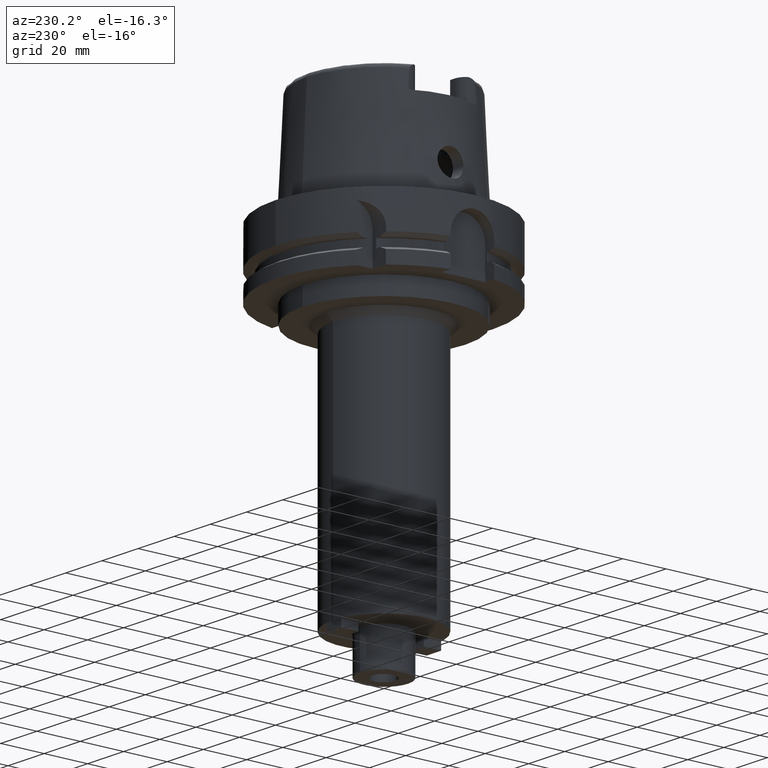
[diagram: clean part render]
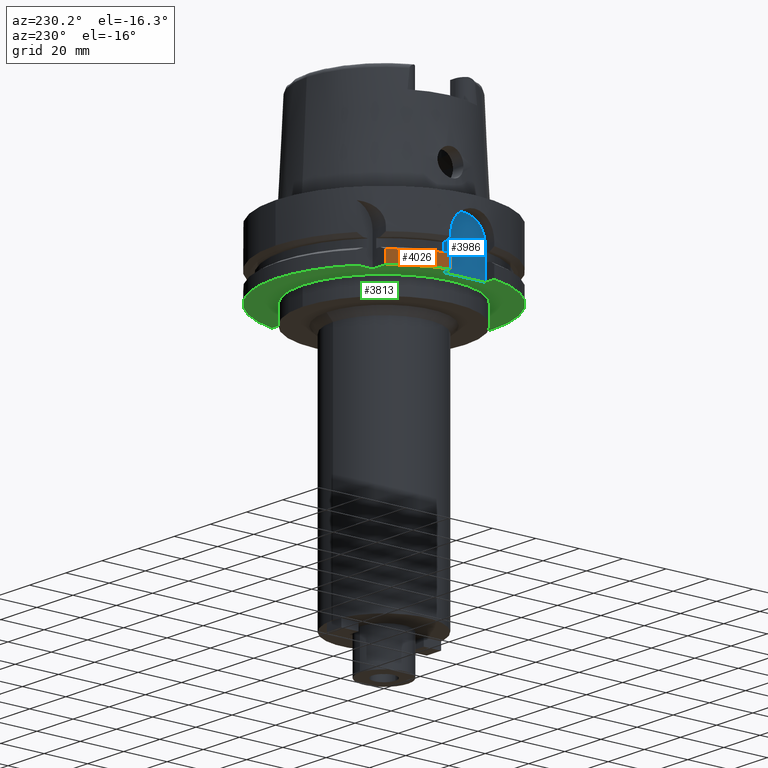
[diagram: same view with three faces highlighted in distinct colors, each labeled with its STEP entity id]
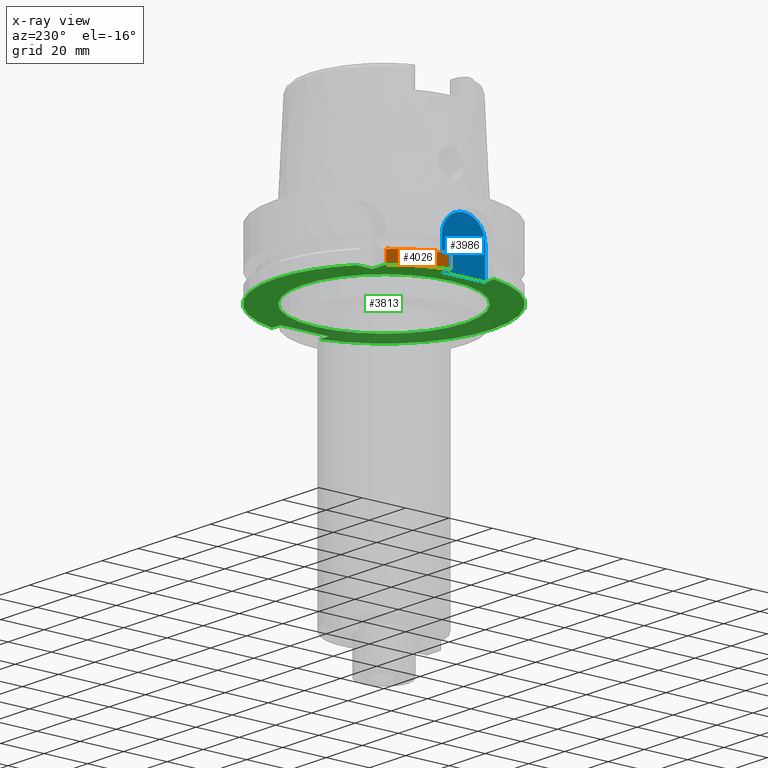
[diagram: x-ray of the same camera — body ghosted, the three highlighted faces saturated]
A machine part, auxiliary view with three faces highlighted in distinct colors.
The next image is the same camera in x-ray (body ghosted, the three faces saturated) — at least one of them is partly hidden behind the body in this view.
Their STEP definitions:

[orange] entity #4026 — the highlighted cylindrical surface (partial cylindrical patch) has radius 50 mm, axis along (0, 0, 1).
#1292=CARTESIAN_POINT('',(0.E0,0.E0,-2.9E1));
#1293=DIRECTION('',(0.E0,0.E0,1.E0));
#1294=DIRECTION('',(-7.765951326142E-1,6.3E-1,0.E0));
#1295=AXIS2_PLACEMENT_3D('',#1292,#1293,#1294);
#1545=DIRECTION('',(-1.164835654148E-7,-1.435883620959E-7,1.E0));
#1546=VECTOR('',#1545,5.752407739009E0);
#1547=CARTESIAN_POINT('',(-3.882975663071E1,3.15E1,-2.9E1));
#1548=LINE('',#1547,#1546);
#1552=DIRECTION('',(-8.399427413532E-14,0.E0,-1.E0));
#1553=VECTOR('',#1552,5.752404735809E0);
#1554=CARTESIAN_POINT('',(-4.898979485566E1,1.E1,-2.324759526419E1));
#1555=LINE('',#1554,#1553);
#2212=CARTESIAN_POINT('',(0.E0,0.E0,-2.324759526419E1));
#2213=DIRECTION('',(0.E0,0.E0,-1.E0));
#2214=DIRECTION('',(-9.797958971133E-1,2.E-1,0.E0));
#2215=AXIS2_PLACEMENT_3D('',#2212,#2213,#2214);
#2657=CARTESIAN_POINT('',(-3.882975663071E1,3.15E1,-2.9E1));
#2658=VERTEX_POINT('',#2657);
#2659=CARTESIAN_POINT('',(-4.898979485566E1,1.E1,-2.9E1));
#2660=VERTEX_POINT('',#2659);
#2703=CARTESIAN_POINT('',(-3.882975730077E1,3.149999917402E1,
-2.324759226099E1));
#2704=VERTEX_POINT('',#2703);
#2705=CARTESIAN_POINT('',(-4.898979485566E1,1.E1,-2.324759526419E1));
#2706=VERTEX_POINT('',#2705);
#4013=CARTESIAN_POINT('',(0.E0,0.E0,-1.7785E2));
#4014=DIRECTION('',(0.E0,0.E0,1.E0));
#4015=DIRECTION('',(0.E0,1.E0,0.E0));
#4016=AXIS2_PLACEMENT_3D('',#4013,#4014,#4015);
#4017=CYLINDRICAL_SURFACE('',#4016,5.E1);
#4019=ORIENTED_EDGE('',*,*,#4018,.T.);
#4021=ORIENTED_EDGE('',*,*,#4020,.F.);
#4022=ORIENTED_EDGE('',*,*,#3993,.T.);
#4023=ORIENTED_EDGE('',*,*,#3785,.F.);
#4024=EDGE_LOOP('',(#4019,#4021,#4022,#4023));
#4025=FACE_OUTER_BOUND('',#4024,.F.);
#1296=CIRCLE('',#1295,5.E1);
#2216=CIRCLE('',#2215,5.E1);
#3785=EDGE_CURVE('',#2658,#2660,#1296,.T.);
#3993=EDGE_CURVE('',#2706,#2660,#1555,.T.);
#4018=EDGE_CURVE('',#2658,#2704,#1548,.T.);
#4020=EDGE_CURVE('',#2706,#2704,#2216,.T.);
#4026=ADVANCED_FACE('',(#4025),#4017,.T.);

[blue] entity #3986 — the highlighted planar face has unit normal (1, 0, 0).
#1487=DIRECTION('',(0.E0,0.E0,1.E0));
#1488=VECTOR('',#1487,1.4E1);
#1489=CARTESIAN_POINT('',(-4.4E1,-1.E1,-2.9E1));
#1490=LINE('',#1489,#1488);
#1501=DIRECTION('',(0.E0,1.E0,0.E0));
#1502=VECTOR('',#1501,2.E1);
#1503=CARTESIAN_POINT('',(-4.4E1,-1.E1,-2.9E1));
#1504=LINE('',#1503,#1502);
#1508=CARTESIAN_POINT('',(-4.4E1,0.E0,-1.5E1));
#1509=DIRECTION('',(1.E0,0.E0,0.E0));
#1510=DIRECTION('',(0.E0,1.E0,0.E0));
#1511=AXIS2_PLACEMENT_3D('',#1508,#1509,#1510);
#1516=CARTESIAN_POINT('',(-4.4E1,0.E0,-1.5E1));
#1517=DIRECTION('',(1.E0,0.E0,0.E0));
#1518=DIRECTION('',(0.E0,0.E0,1.E0));
#1519=AXIS2_PLACEMENT_3D('',#1516,#1517,#1518);
#1538=DIRECTION('',(0.E0,0.E0,-1.E0));
#1539=VECTOR('',#1538,1.4E1);
#1540=CARTESIAN_POINT('',(-4.4E1,1.E1,-1.5E1));
#1541=LINE('',#1540,#1539);
#2661=CARTESIAN_POINT('',(-4.4E1,1.E1,-2.9E1));
#2662=VERTEX_POINT('',#2661);
#2663=CARTESIAN_POINT('',(-4.4E1,-1.E1,-2.9E1));
#2664=VERTEX_POINT('',#2663);
#2707=CARTESIAN_POINT('',(-4.4E1,-1.E1,-1.5E1));
#2708=VERTEX_POINT('',#2707);
#2720=CARTESIAN_POINT('',(-4.4E1,1.E1,-1.5E1));
#2721=VERTEX_POINT('',#2720);
#2722=CARTESIAN_POINT('',(-4.4E1,0.E0,-5.E0));
#2723=VERTEX_POINT('',#2722);
#3971=CARTESIAN_POINT('',(-4.4E1,0.E0,0.E0));
#3972=DIRECTION('',(1.E0,0.E0,0.E0));
#3973=DIRECTION('',(0.E0,0.E0,1.E0));
#3974=AXIS2_PLACEMENT_3D('',#3971,#3972,#3973);
#3975=PLANE('',#3974);
#3976=ORIENTED_EDGE('',*,*,#3789,.T.);
#3978=ORIENTED_EDGE('',*,*,#3977,.F.);
#3980=ORIENTED_EDGE('',*,*,#3979,.T.);
#3982=ORIENTED_EDGE('',*,*,#3981,.T.);
#3983=ORIENTED_EDGE('',*,*,#3951,.F.);
#3984=EDGE_LOOP('',(#3976,#3978,#3980,#3982,#3983));
#3985=FACE_OUTER_BOUND('',#3984,.F.);
#1512=CIRCLE('',#1511,1.E1);
#1520=CIRCLE('',#1519,1.E1);
#3789=EDGE_CURVE('',#2664,#2662,#1504,.T.);
#3951=EDGE_CURVE('',#2664,#2708,#1490,.T.);
#3977=EDGE_CURVE('',#2721,#2662,#1541,.T.);
#3979=EDGE_CURVE('',#2721,#2723,#1512,.T.);
#3981=EDGE_CURVE('',#2723,#2708,#1520,.T.);
#3986=ADVANCED_FACE('',(#3985),#3975,.F.);

[green] entity #3813 — the highlighted planar face has unit normal (0, 0, 1).
#1285=DIRECTION('',(-1.E0,-4.798503851106E-14,0.E0));
#1286=VECTOR('',#1285,7.329756630709E0);
#1287=CARTESIAN_POINT('',(-3.15E1,3.15E1,-2.9E1));
#1288=LINE('',#1287,#1286);
#1292=CARTESIAN_POINT('',(0.E0,0.E0,-2.9E1));
#1293=DIRECTION('',(0.E0,0.E0,1.E0));
#1294=DIRECTION('',(-7.765951326142E-1,6.3E-1,0.E0));
#1295=AXIS2_PLACEMENT_3D('',#1292,#1293,#1294);
#1300=DIRECTION('',(-1.E0,-4.627973610177E-14,0.E0));
#1301=VECTOR('',#1300,4.989794855662E0);
#1302=CARTESIAN_POINT('',(-4.4E1,-1.E1,-2.9E1));
#1303=LINE('',#1302,#1301);
#1307=CARTESIAN_POINT('',(0.E0,0.E0,-2.9E1));
#1308=DIRECTION('',(0.E0,0.E0,1.E0));
#1309=DIRECTION('',(-9.797958971133E-1,-2.E-1,0.E0));
#1310=AXIS2_PLACEMENT_3D('',#1307,#1308,#1309);
#1315=CARTESIAN_POINT('',(0.E0,0.E0,-2.9E1));
#1316=DIRECTION('',(0.E0,0.E0,1.E0));
#1317=DIRECTION('',(0.E0,-1.E0,0.E0));
#1318=AXIS2_PLACEMENT_3D('',#1315,#1316,#1317);
#1323=DIRECTION('',(1.E0,-1.785659532940E-14,0.E0));
#1324=VECTOR('',#1323,4.774993593029E0);
#1325=CARTESIAN_POINT('',(4.4E1,1.1E1,-2.9E1));
#1326=LINE('',#1325,#1324);
#1330=CARTESIAN_POINT('',(0.E0,0.E0,-2.9E1));
#1331=DIRECTION('',(0.E0,0.E0,1.E0));
#1332=DIRECTION('',(9.754998718606E-1,2.2E-1,0.E0));
#1333=AXIS2_PLACEMENT_3D('',#1330,#1331,#1332);
#1338=CARTESIAN_POINT('',(0.E0,0.E0,-2.9E1));
#1339=DIRECTION('',(0.E0,0.E0,1.E0));
#1340=DIRECTION('',(0.E0,1.E0,0.E0));
#1341=AXIS2_PLACEMENT_3D('',#1338,#1339,#1340);
#1346=CARTESIAN_POINT('',(0.E0,0.E0,-2.9E1));
#1347=DIRECTION('',(0.E0,0.E0,-1.E0));
#1348=DIRECTION('',(0.E0,-1.E0,0.E0));
#1349=AXIS2_PLACEMENT_3D('',#1346,#1347,#1348);
#1354=CARTESIAN_POINT('',(0.E0,0.E0,-2.9E1));
#1355=DIRECTION('',(0.E0,0.E0,-1.E0));
#1356=DIRECTION('',(0.E0,1.E0,0.E0));
#1357=AXIS2_PLACEMENT_3D('',#1354,#1355,#1356);
#1362=DIRECTION('',(4.798503851106E-14,1.E0,0.E0));
#1363=VECTOR('',#1362,7.329756630709E0);
#1364=CARTESIAN_POINT('',(-3.15E1,3.15E1,-2.9E1));
#1365=LINE('',#1364,#1363);
#1415=DIRECTION('',(0.E0,-1.E0,0.E0));
#1416=VECTOR('',#1415,2.2E1);
#1417=CARTESIAN_POINT('',(4.4E1,1.1E1,-2.9E1));
#1418=LINE('',#1417,#1416);
#1459=DIRECTION('',(1.E0,1.711257052401E-14,0.E0));
#1460=VECTOR('',#1459,4.774993593029E0);
#1461=CARTESIAN_POINT('',(4.4E1,-1.1E1,-2.9E1));
#1462=LINE('',#1461,#1460);
#1501=DIRECTION('',(0.E0,1.E0,0.E0));
#1502=VECTOR('',#1501,2.E1);
#1503=CARTESIAN_POINT('',(-4.4E1,-1.E1,-2.9E1));
#1504=LINE('',#1503,#1502);
#1524=DIRECTION('',(-1.E0,4.627973610177E-14,0.E0));
#1525=VECTOR('',#1524,4.989794855662E0);
#1526=CARTESIAN_POINT('',(-4.4E1,1.E1,-2.9E1));
#1527=LINE('',#1526,#1525);
#2649=CARTESIAN_POINT('',(0.E0,3.75E1,-2.9E1));
#2650=VERTEX_POINT('',#2649);
#2651=CARTESIAN_POINT('',(0.E0,-3.75E1,-2.9E1));
#2652=VERTEX_POINT('',#2651);
#2653=CARTESIAN_POINT('',(-3.15E1,3.15E1,-2.9E1));
#2654=CARTESIAN_POINT('',(-3.15E1,3.882975663071E1,-2.9E1));
#2655=VERTEX_POINT('',#2653);
#2656=VERTEX_POINT('',#2654);
#2657=CARTESIAN_POINT('',(-3.882975663071E1,3.15E1,-2.9E1));
#2658=VERTEX_POINT('',#2657);
#2659=CARTESIAN_POINT('',(-4.898979485566E1,1.E1,-2.9E1));
#2660=VERTEX_POINT('',#2659);
#2661=CARTESIAN_POINT('',(-4.4E1,1.E1,-2.9E1));
#2662=VERTEX_POINT('',#2661);
#2663=CARTESIAN_POINT('',(-4.4E1,-1.E1,-2.9E1));
#2664=VERTEX_POINT('',#2663);
#2665=CARTESIAN_POINT('',(-4.898979485566E1,-1.E1,-2.9E1));
#2666=VERTEX_POINT('',#2665);
#2667=CARTESIAN_POINT('',(-6.821749291191E-14,-5.E1,-2.9E1));
#2668=CARTESIAN_POINT('',(4.877499359303E1,-1.1E1,-2.9E1));
#2669=VERTEX_POINT('',#2667);
#2670=VERTEX_POINT('',#2668);
#2671=CARTESIAN_POINT('',(4.4E1,-1.1E1,-2.9E1));
#2672=VERTEX_POINT('',#2671);
#2673=CARTESIAN_POINT('',(4.4E1,1.1E1,-2.9E1));
#2674=VERTEX_POINT('',#2673);
#2675=CARTESIAN_POINT('',(4.877499359303E1,1.1E1,-2.9E1));
#2676=VERTEX_POINT('',#2675);
#2677=CARTESIAN_POINT('',(-6.019535474874E-14,5.E1,-2.9E1));
#2678=VERTEX_POINT('',#2677);
#3776=CARTESIAN_POINT('',(0.E0,0.E0,-2.9E1));
#3777=DIRECTION('',(0.E0,0.E0,1.E0));
#3778=DIRECTION('',(0.E0,1.E0,0.E0));
#3779=AXIS2_PLACEMENT_3D('',#3776,#3777,#3778);
#3780=PLANE('',#3779);
#3782=ORIENTED_EDGE('',*,*,#3781,.F.);
#3784=ORIENTED_EDGE('',*,*,#3783,.T.);
#3786=ORIENTED_EDGE('',*,*,#3785,.T.);
#3788=ORIENTED_EDGE('',*,*,#3787,.F.);
#3790=ORIENTED_EDGE('',*,*,#3789,.F.);
#3792=ORIENTED_EDGE('',*,*,#3791,.T.);
#3794=ORIENTED_EDGE('',*,*,#3793,.T.);
#3796=ORIENTED_EDGE('',*,*,#3795,.T.);
#3798=ORIENTED_EDGE('',*,*,#3797,.F.);
#3800=ORIENTED_EDGE('',*,*,#3799,.F.);
#3802=ORIENTED_EDGE('',*,*,#3801,.T.);
#3804=ORIENTED_EDGE('',*,*,#3803,.T.);
#3806=ORIENTED_EDGE('',*,*,#3805,.T.);
#3807=EDGE_LOOP('',(#3782,#3784,#3786,#3788,#3790,#3792,#3794,#3796,#3798,#3800,
#3802,#3804,#3806));
#3808=FACE_OUTER_BOUND('',#3807,.F.);
#3809=ORIENTED_EDGE('',*,*,#3769,.T.);
#3810=ORIENTED_EDGE('',*,*,#3758,.T.);
#3811=EDGE_LOOP('',(#3809,#3810));
#3812=FACE_BOUND('',#3811,.F.);
#1296=CIRCLE('',#1295,5.E1);
#1311=CIRCLE('',#1310,5.E1);
#1319=CIRCLE('',#1318,5.E1);
#1334=CIRCLE('',#1333,5.E1);
#1342=CIRCLE('',#1341,5.E1);
#1350=CIRCLE('',#1349,3.75E1);
#1358=CIRCLE('',#1357,3.75E1);
#3758=EDGE_CURVE('',#2650,#2652,#1358,.T.);
#3769=EDGE_CURVE('',#2652,#2650,#1350,.T.);
#3781=EDGE_CURVE('',#2655,#2656,#1365,.T.);
#3783=EDGE_CURVE('',#2655,#2658,#1288,.T.);
#3785=EDGE_CURVE('',#2658,#2660,#1296,.T.);
#3787=EDGE_CURVE('',#2662,#2660,#1527,.T.);
#3789=EDGE_CURVE('',#2664,#2662,#1504,.T.);
#3791=EDGE_CURVE('',#2664,#2666,#1303,.T.);
#3793=EDGE_CURVE('',#2666,#2669,#1311,.T.);
#3795=EDGE_CURVE('',#2669,#2670,#1319,.T.);
#3797=EDGE_CURVE('',#2672,#2670,#1462,.T.);
#3799=EDGE_CURVE('',#2674,#2672,#1418,.T.);
#3801=EDGE_CURVE('',#2674,#2676,#1326,.T.);
#3803=EDGE_CURVE('',#2676,#2678,#1334,.T.);
#3805=EDGE_CURVE('',#2678,#2656,#1342,.T.);
#3813=ADVANCED_FACE('',(#3808,#3812),#3780,.F.);